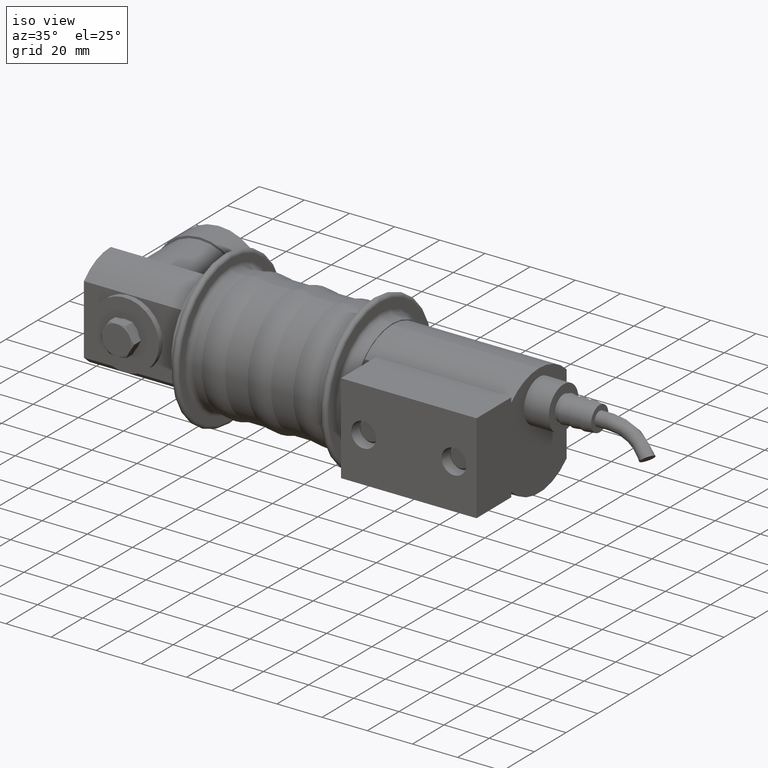
[diagram: clean part render]
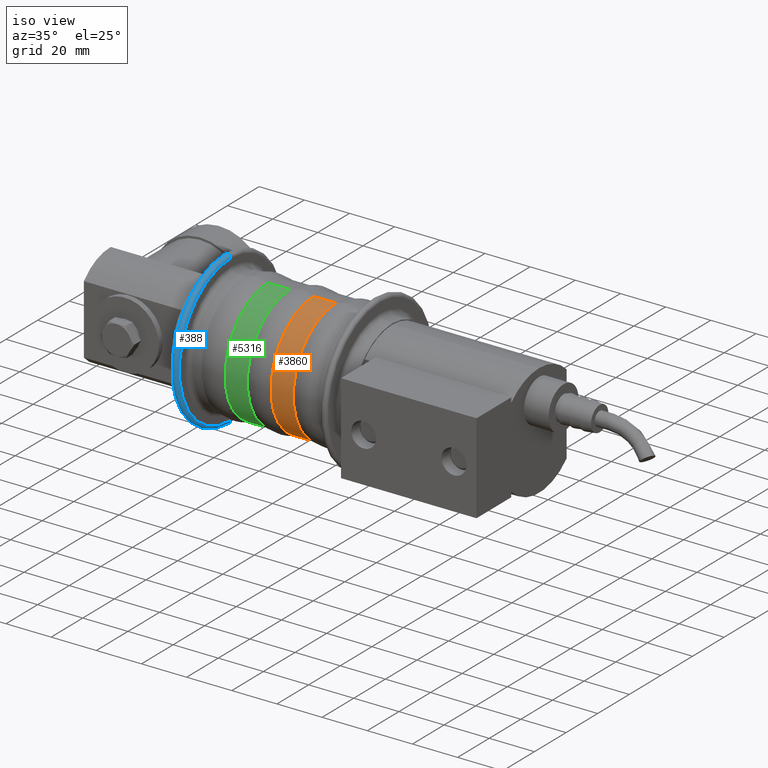
[diagram: same view with three faces highlighted in distinct colors, each labeled with its STEP entity id]
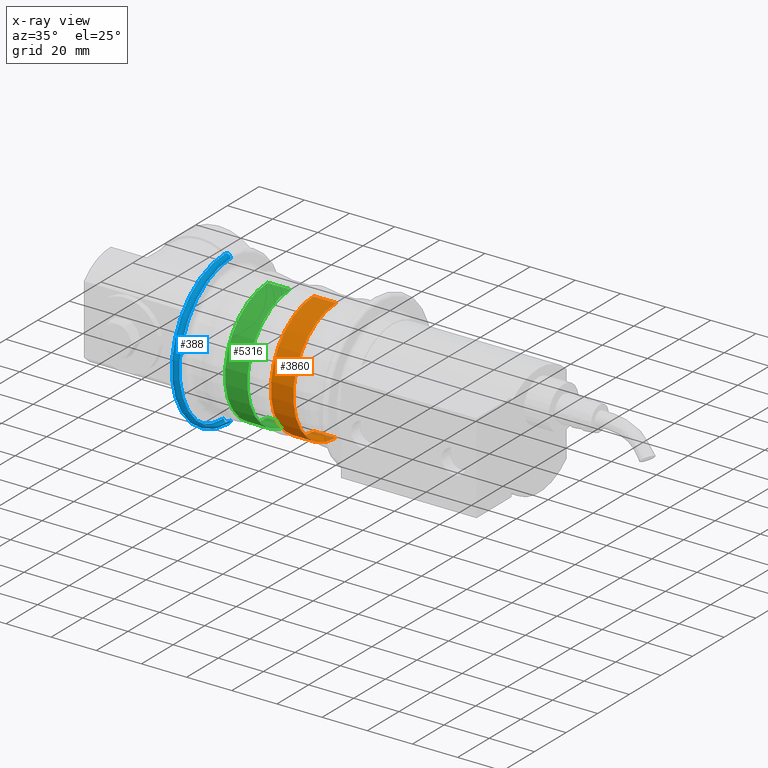
[diagram: x-ray of the same camera — body ghosted, the three highlighted faces saturated]
A machine part, iso view with three faces highlighted in distinct colors.
The next image is the same camera in x-ray (body ghosted, the three faces saturated) — at least one of them is partly hidden behind the body in this view.
Their STEP definitions:

[orange] entity #3860 — the highlighted cylindrical surface (partial cylindrical patch) has radius 27 mm, axis along (-1, 0, 0).
#165 = DIRECTION ( 'NONE',  ( 1.000000000000000000, 0.0000000000000000000, 0.0000000000000000000 ) ) ;
#197 = CARTESIAN_POINT ( 'NONE',  ( 34.80384757729335400, 0.0000000000000000000, 0.0000000000000000000 ) ) ;
#325 = CARTESIAN_POINT ( 'NONE',  ( 80.00000000000000000, 0.0000000000000000000, -26.99999999999999600 ) ) ;
#397 = VECTOR ( 'NONE', #415, 1000.000000000000000 ) ;
#415 = DIRECTION ( 'NONE',  ( 1.000000000000000000, 0.0000000000000000000, 0.0000000000000000000 ) ) ;
#736 = DIRECTION ( 'NONE',  ( 0.0000000000000000000, 0.0000000000000000000, -1.000000000000000000 ) ) ;
#970 = EDGE_CURVE ( 'NONE', #5399, #4552, #4835, .T. ) ;
#1455 = CARTESIAN_POINT ( 'NONE',  ( 34.80384757729335400, 3.306546357697854100E-015, 27.00000000000000000 ) ) ;
#1537 = ORIENTED_EDGE ( 'NONE', *, *, #2701, .F. ) ;
#1628 = EDGE_CURVE ( 'NONE', #6870, #5272, #6730, .T. ) ;
#1691 = ORIENTED_EDGE ( 'NONE', *, *, #970, .T. ) ;
#2012 = AXIS2_PLACEMENT_3D ( 'NONE', #197, #2373, #6663 ) ;
#2232 = AXIS2_PLACEMENT_3D ( 'NONE', #3683, #4279, #4230 ) ;
#2373 = DIRECTION ( 'NONE',  ( 1.000000000000000000, 0.0000000000000000000, 0.0000000000000000000 ) ) ;
#2701 = EDGE_CURVE ( 'NONE', #5272, #4552, #6545, .T. ) ;
#2918 = DIRECTION ( 'NONE',  ( 1.000000000000000000, 0.0000000000000000000, 0.0000000000000000000 ) ) ;
#3473 = VECTOR ( 'NONE', #165, 1000.000000000000000 ) ;
#3683 = CARTESIAN_POINT ( 'NONE',  ( 80.00000000000000000, 0.0000000000000000000, 0.0000000000000000000 ) ) ;
#3851 = FACE_OUTER_BOUND ( 'NONE', #6805, .T. ) ;
#3860 = ADVANCED_FACE ( 'NONE', ( #3851 ), #4019, .T. ) ;
#4014 = CIRCLE ( 'NONE', #4526, 27.00000000000000000 ) ;
#4019 = CYLINDRICAL_SURFACE ( 'NONE', #2232, 26.99999999999999600 ) ;
#4037 = CARTESIAN_POINT ( 'NONE',  ( 24.89230484541327100, 0.0000000000000000000, -27.00000000000000000 ) ) ;
#4230 = DIRECTION ( 'NONE',  ( 0.0000000000000000000, 0.0000000000000000000, -1.000000000000000000 ) ) ;
#4279 = DIRECTION ( 'NONE',  ( 1.000000000000000000, 0.0000000000000000000, 0.0000000000000000000 ) ) ;
#4526 = AXIS2_PLACEMENT_3D ( 'NONE', #5058, #2918, #736 ) ;
#4552 = VERTEX_POINT ( 'NONE', #5960 ) ;
#4835 = LINE ( 'NONE', #325, #397 ) ;
#4861 = EDGE_CURVE ( 'NONE', #6870, #5399, #4014, .T. ) ;
#5058 = CARTESIAN_POINT ( 'NONE',  ( 24.89230484541327100, 0.0000000000000000000, 0.0000000000000000000 ) ) ;
#5272 = VERTEX_POINT ( 'NONE', #1455 ) ;
#5399 = VERTEX_POINT ( 'NONE', #4037 ) ;
#5960 = CARTESIAN_POINT ( 'NONE',  ( 34.80384757729335400, 0.0000000000000000000, -26.99999999999999600 ) ) ;
#6221 = ORIENTED_EDGE ( 'NONE', *, *, #1628, .F. ) ;
#6545 = CIRCLE ( 'NONE', #2012, 26.99999999999999600 ) ;
#6608 = ORIENTED_EDGE ( 'NONE', *, *, #4861, .T. ) ;
#6628 = CARTESIAN_POINT ( 'NONE',  ( 80.00000000000000000, 3.306546357697853300E-015, 26.99999999999999600 ) ) ;
#6663 = DIRECTION ( 'NONE',  ( 0.0000000000000000000, 0.0000000000000000000, -1.000000000000000000 ) ) ;
#6730 = LINE ( 'NONE', #6628, #3473 ) ;
#6805 = EDGE_LOOP ( 'NONE', ( #6221, #6608, #1691, #1537 ) ) ;
#6817 = CARTESIAN_POINT ( 'NONE',  ( 24.89230484541327100, 3.306546357697854100E-015, 27.00000000000000400 ) ) ;
#6870 = VERTEX_POINT ( 'NONE', #6817 ) ;

[blue] entity #388 — the highlighted toroidal blend (fillet) surface has major radius 32.5 mm and minor (blend) radius 1.5 mm.
#109 = DIRECTION ( 'NONE',  ( 0.0000000000000000000, 0.0000000000000000000, -1.000000000000000000 ) ) ;
#121 = CIRCLE ( 'NONE', #989, 32.49999999999998600 ) ;
#378 = VERTEX_POINT ( 'NONE', #1860 ) ;
#388 = ADVANCED_FACE ( 'NONE', ( #5746 ), #1733, .T. ) ;
#463 = CARTESIAN_POINT ( 'NONE',  ( 71.50000000000001400, 0.0000000000000000000, 0.0000000000000000000 ) ) ;
#989 = AXIS2_PLACEMENT_3D ( 'NONE', #463, #1489, #5805 ) ;
#1014 = EDGE_CURVE ( 'NONE', #378, #6085, #4502, .T. ) ;
#1489 = DIRECTION ( 'NONE',  ( 1.000000000000000000, 0.0000000000000000000, 0.0000000000000000000 ) ) ;
#1555 = VERTEX_POINT ( 'NONE', #3546 ) ;
#1629 = AXIS2_PLACEMENT_3D ( 'NONE', #4474, #5009, #1798 ) ;
#1641 = AXIS2_PLACEMENT_3D ( 'NONE', #6653, #3477, #5549 ) ;
#1668 = EDGE_CURVE ( 'NONE', #6696, #6085, #3298, .T. ) ;
#1733 = TOROIDAL_SURFACE ( 'NONE', #1641, 32.49999999999998600, 1.500000000000001300 ) ;
#1798 = DIRECTION ( 'NONE',  ( 0.0000000000000000000, 0.0000000000000000000, -1.000000000000000000 ) ) ;
#1860 = CARTESIAN_POINT ( 'NONE',  ( 71.50000000000001400, 0.0000000000000000000, -32.49999999999998600 ) ) ;
#1908 = DIRECTION ( 'NONE',  ( 0.0000000000000000000, 1.224646799147354400E-016, 1.000000000000000000 ) ) ;
#2164 = ORIENTED_EDGE ( 'NONE', *, *, #4404, .F. ) ;
#2268 = ORIENTED_EDGE ( 'NONE', *, *, #1668, .F. ) ;
#2272 = ORIENTED_EDGE ( 'NONE', *, *, #2311, .T. ) ;
#2276 = CARTESIAN_POINT ( 'NONE',  ( 74.50000000000001400, 0.0000000000000000000, -32.49999999999998600 ) ) ;
#2311 = EDGE_CURVE ( 'NONE', #1555, #378, #121, .T. ) ;
#2722 = DIRECTION ( 'NONE',  ( 0.0000000000000000000, -1.000000000000000000, 0.0000000000000000000 ) ) ;
#2781 = ORIENTED_EDGE ( 'NONE', *, *, #1014, .T. ) ;
#3298 = CIRCLE ( 'NONE', #1629, 32.49999999999998600 ) ;
#3316 = CARTESIAN_POINT ( 'NONE',  ( 73.00000000000001400, 0.0000000000000000000, -32.49999999999998600 ) ) ;
#3400 = CIRCLE ( 'NONE', #5802, 1.500000000000001300 ) ;
#3477 = DIRECTION ( 'NONE',  ( 1.000000000000000000, 0.0000000000000000000, 0.0000000000000000000 ) ) ;
#3546 = CARTESIAN_POINT ( 'NONE',  ( 71.50000000000001400, 3.980102097228896300E-015, 32.49999999999998600 ) ) ;
#4133 = CARTESIAN_POINT ( 'NONE',  ( 73.00000000000001400, 3.980102097228896300E-015, 32.49999999999998600 ) ) ;
#4404 = EDGE_CURVE ( 'NONE', #1555, #6696, #3400, .T. ) ;
#4474 = CARTESIAN_POINT ( 'NONE',  ( 74.50000000000001400, 0.0000000000000000000, 0.0000000000000000000 ) ) ;
#4502 = CIRCLE ( 'NONE', #6390, 1.500000000000001300 ) ;
#4675 = DIRECTION ( 'NONE',  ( 0.0000000000000000000, 1.000000000000000000, -1.224646799147353200E-016 ) ) ;
#5009 = DIRECTION ( 'NONE',  ( 1.000000000000000000, 0.0000000000000000000, 0.0000000000000000000 ) ) ;
#5549 = DIRECTION ( 'NONE',  ( 0.0000000000000000000, 0.0000000000000000000, -1.000000000000000000 ) ) ;
#5746 = FACE_OUTER_BOUND ( 'NONE', #6593, .T. ) ;
#5802 = AXIS2_PLACEMENT_3D ( 'NONE', #4133, #4675, #1908 ) ;
#5805 = DIRECTION ( 'NONE',  ( 0.0000000000000000000, 0.0000000000000000000, -1.000000000000000000 ) ) ;
#5889 = CARTESIAN_POINT ( 'NONE',  ( 74.50000000000001400, 3.980102097228896300E-015, 32.49999999999998600 ) ) ;
#6085 = VERTEX_POINT ( 'NONE', #2276 ) ;
#6390 = AXIS2_PLACEMENT_3D ( 'NONE', #3316, #2722, #109 ) ;
#6593 = EDGE_LOOP ( 'NONE', ( #2164, #2272, #2781, #2268 ) ) ;
#6653 = CARTESIAN_POINT ( 'NONE',  ( 73.00000000000001400, 0.0000000000000000000, 0.0000000000000000000 ) ) ;
#6696 = VERTEX_POINT ( 'NONE', #5889 ) ;

[green] entity #5316 — the highlighted cylindrical surface (partial cylindrical patch) has radius 27 mm, axis along (-1, 0, 0).
#82 = CARTESIAN_POINT ( 'NONE',  ( 45.19615242270663900, 3.306546357697853300E-015, 26.99999999999999600 ) ) ;
#97 = VERTEX_POINT ( 'NONE', #4532 ) ;
#414 = DIRECTION ( 'NONE',  ( 1.000000000000000000, 0.0000000000000000000, 0.0000000000000000000 ) ) ;
#705 = AXIS2_PLACEMENT_3D ( 'NONE', #830, #5634, #3612 ) ;
#830 = CARTESIAN_POINT ( 'NONE',  ( 55.10769515458672900, 0.0000000000000000000, 0.0000000000000000000 ) ) ;
#868 = CARTESIAN_POINT ( 'NONE',  ( 45.19615242270663900, 0.0000000000000000000, 0.0000000000000000000 ) ) ;
#1262 = VERTEX_POINT ( 'NONE', #6831 ) ;
#1341 = EDGE_LOOP ( 'NONE', ( #5519, #6506, #2212, #6661 ) ) ;
#1527 = DIRECTION ( 'NONE',  ( 1.000000000000000000, 0.0000000000000000000, 0.0000000000000000000 ) ) ;
#1973 = DIRECTION ( 'NONE',  ( 1.000000000000000000, 0.0000000000000000000, 0.0000000000000000000 ) ) ;
#2120 = DIRECTION ( 'NONE',  ( 0.0000000000000000000, 0.0000000000000000000, -1.000000000000000000 ) ) ;
#2212 = ORIENTED_EDGE ( 'NONE', *, *, #2354, .T. ) ;
#2290 = VECTOR ( 'NONE', #414, 1000.000000000000000 ) ;
#2354 = EDGE_CURVE ( 'NONE', #3574, #97, #4477, .T. ) ;
#2379 = AXIS2_PLACEMENT_3D ( 'NONE', #5321, #1527, #2120 ) ;
#2470 = DIRECTION ( 'NONE',  ( 0.0000000000000000000, 0.0000000000000000000, -1.000000000000000000 ) ) ;
#2628 = VECTOR ( 'NONE', #3034, 1000.000000000000000 ) ;
#2957 = CIRCLE ( 'NONE', #3147, 26.99999999999999600 ) ;
#3034 = DIRECTION ( 'NONE',  ( 1.000000000000000000, 0.0000000000000000000, 0.0000000000000000000 ) ) ;
#3147 = AXIS2_PLACEMENT_3D ( 'NONE', #868, #1973, #2470 ) ;
#3270 = EDGE_CURVE ( 'NONE', #4763, #1262, #4710, .T. ) ;
#3574 = VERTEX_POINT ( 'NONE', #3866 ) ;
#3595 = CARTESIAN_POINT ( 'NONE',  ( 80.00000000000000000, 3.306546357697853300E-015, 26.99999999999999600 ) ) ;
#3612 = DIRECTION ( 'NONE',  ( 0.0000000000000000000, 0.0000000000000000000, -1.000000000000000000 ) ) ;
#3644 = FACE_OUTER_BOUND ( 'NONE', #1341, .T. ) ;
#3665 = EDGE_CURVE ( 'NONE', #1262, #97, #4276, .T. ) ;
#3736 = CYLINDRICAL_SURFACE ( 'NONE', #2379, 26.99999999999999600 ) ;
#3866 = CARTESIAN_POINT ( 'NONE',  ( 45.19615242270663900, 0.0000000000000000000, -26.99999999999999600 ) ) ;
#4200 = CARTESIAN_POINT ( 'NONE',  ( 80.00000000000000000, 0.0000000000000000000, -26.99999999999999600 ) ) ;
#4276 = CIRCLE ( 'NONE', #705, 27.00000000000000000 ) ;
#4477 = LINE ( 'NONE', #4200, #2628 ) ;
#4532 = CARTESIAN_POINT ( 'NONE',  ( 55.10769515458672900, 0.0000000000000000000, -27.00000000000000000 ) ) ;
#4710 = LINE ( 'NONE', #3595, #2290 ) ;
#4763 = VERTEX_POINT ( 'NONE', #82 ) ;
#5316 = ADVANCED_FACE ( 'NONE', ( #3644 ), #3736, .T. ) ;
#5321 = CARTESIAN_POINT ( 'NONE',  ( 80.00000000000000000, 0.0000000000000000000, 0.0000000000000000000 ) ) ;
#5519 = ORIENTED_EDGE ( 'NONE', *, *, #3270, .F. ) ;
#5634 = DIRECTION ( 'NONE',  ( 1.000000000000000000, 0.0000000000000000000, 0.0000000000000000000 ) ) ;
#6411 = EDGE_CURVE ( 'NONE', #4763, #3574, #2957, .T. ) ;
#6506 = ORIENTED_EDGE ( 'NONE', *, *, #6411, .T. ) ;
#6661 = ORIENTED_EDGE ( 'NONE', *, *, #3665, .F. ) ;
#6831 = CARTESIAN_POINT ( 'NONE',  ( 55.10769515458672900, 3.306546357697854500E-015, 27.00000000000000400 ) ) ;